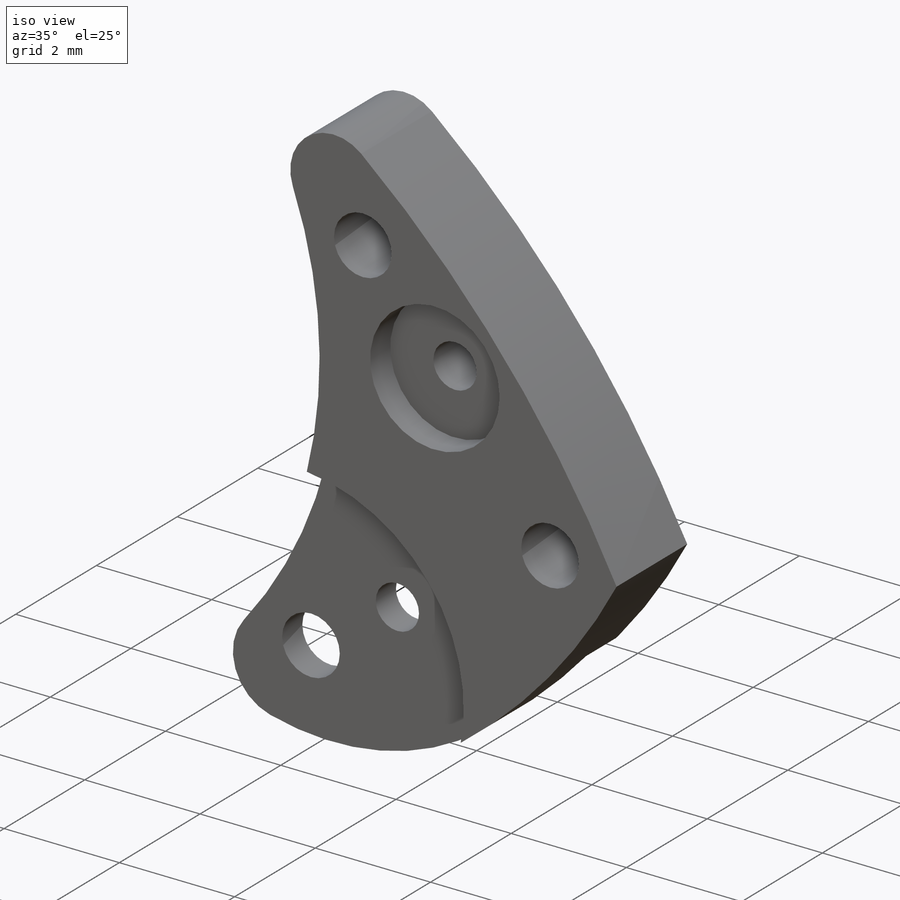
[diagram: iso view]
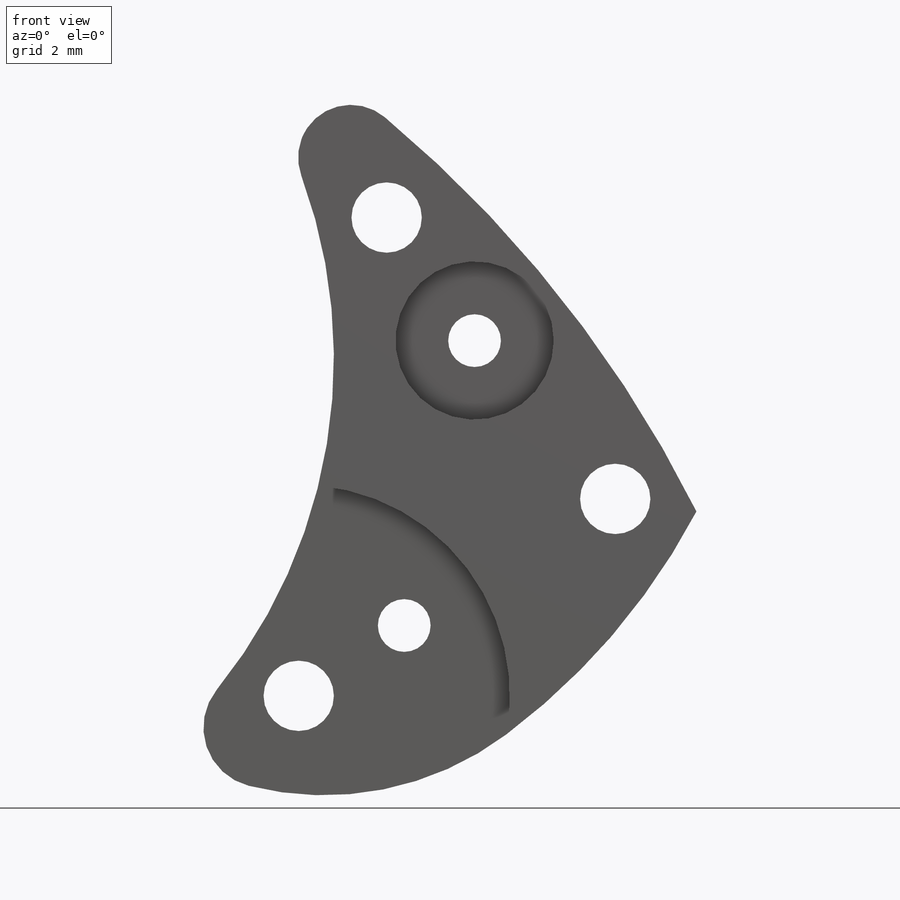
[diagram: front view]
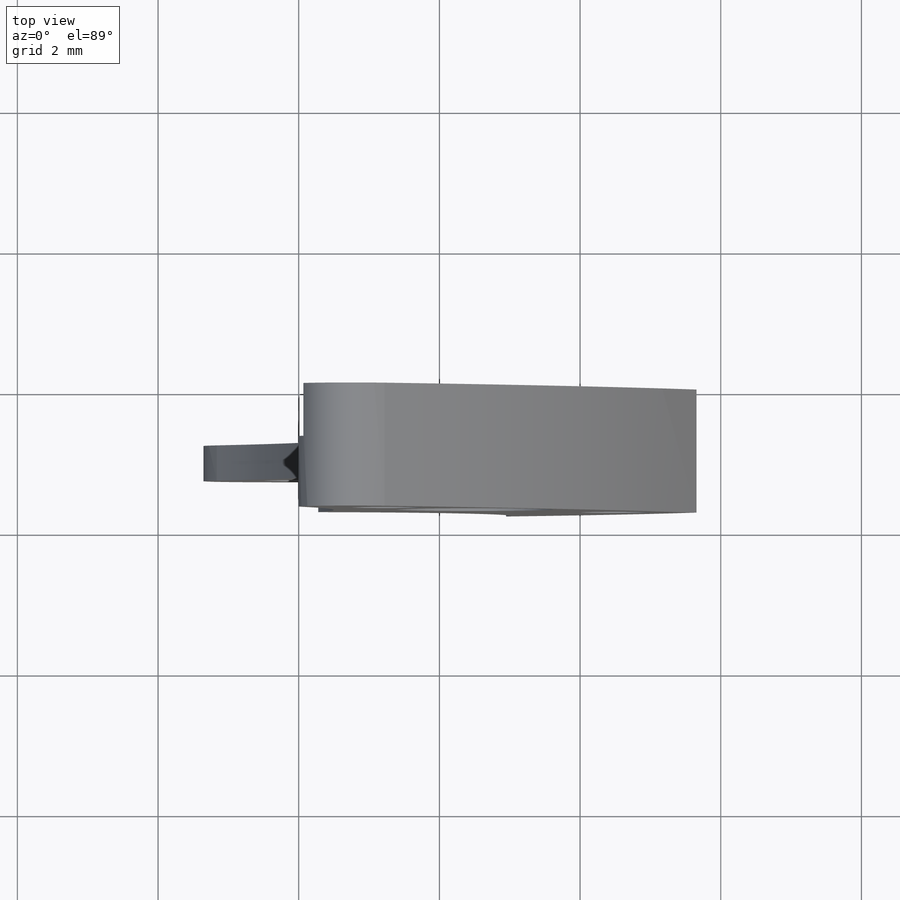
[diagram: top view]
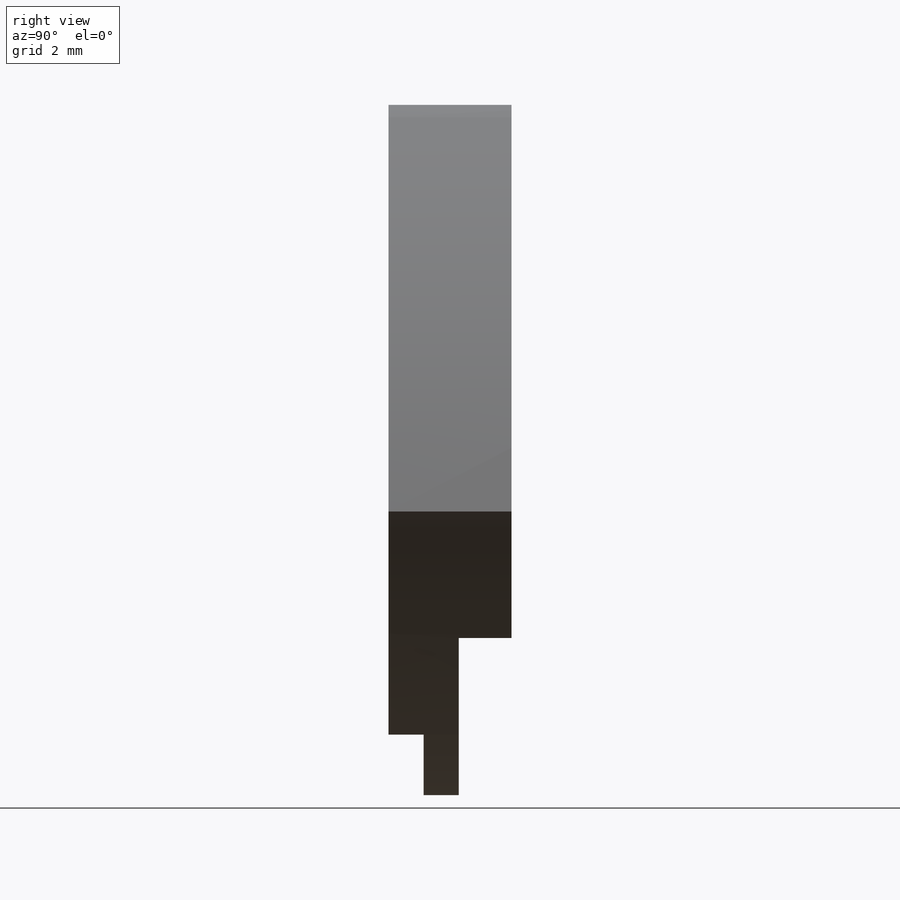
[diagram: right view]
SOLIDWORKS PART (.sldprt)
format: sldprt  version: not decoded by parser v0  size: 324,096 bytes
history: native  units: mm
features: sketch x9, cut_extrude x4, plane x3, hole x2, thread x2, material x1, extrude x1 (+8 scaffold rows collapsed)
feature tree (30):
  scaffold x8  (default folders/planes/origin — collapsed)
  material  "Material <sin especificar>"
  plane  "Alzado"
  plane  "Planta"
  plane  "Vista lateral"
  sketch  "Croquis1"  dims[c1.D3=~0.855387mm c1.D4=9.5mm c1.D5=7.5mm c1.D9=0.75mm c1.D10=17.5mm c1.D11=1.0mm c1.D14=6.0mm c1.D15=1.0mm c1.D16=1.0mm c1.D1=9.5mm c1.D2=4.75mm c1.D6=3.0mm c1.D7=10.0mm c2.D3=10.0mm c2.D7=7.25mm c2.D8=12.25mm c2.D12=10.0mm c2.D13=5.2mm c2.D17=14.5mm c2.D18=8.0mm c2.D19=12.0mm c2.D20=11.25mm]
  extrude  "Saliente-Extruir1"  Depth=1.75mm
  sketch  "Croquis3"  dims[D1=9.0mm]
  cut_extrude  "Cortar-Extruir2"  Depth=0.75mm
  sketch  "Croquis4"  dims[D1=0.25mm]
  cut_extrude  "Cortar-Extruir3"  [1 undecoded]
  sketch  "Croquis5"  dims[D1=2.25mm D2=10.25mm D3=12.5mm]
  cut_extrude  "Cortar-Extruir4"  Depth=0.5mm
  hole  "Taladro roscado M1x0.251"  Depth=1.25mm  [1 undecoded]
  sketch  "Croquis7"
  sketch  "Croquis6"  dims[hole-wizard template sketch: 61 standard entries collapsed; hole parameters above]
  thread  "Rosca de taladro1"  Diameter=1mm  [1 undecoded]
  sketch  "Croquis8"  dims[D1=6.0mm]
  cut_extrude  "Cortar-Extruir5"  Depth=0.5mm
  hole  "Taladro roscado M1x0.252"  Depth=2mm  [1 undecoded]
  sketch  "Croquis12"  dims[c1.D1=1.0mm c1.D2=1.0mm c2.D1=1.5mm c2.D2=1.0mm]
  sketch  "Croquis11"  dims[hole-wizard template sketch: 46 standard entries collapsed; hole parameters kept: c15.Diámetro de perforador para roscar=0.75mm c15.Profundidad de perforador para roscar=2.0mm c15.D3=~14.816244mm c15.Ángulo de perforador=118.0deg]
  thread  "Rosca de taladro2"  Diameter=0.5mm  [1 undecoded]
decode coverage: 16 of 18 modeling features carry decoded parameters
note: ~ marks probable driven/reference dimensions
note: 5 parameter values undecoded
summary: no parameter record found for 3 features
note: suppression state not decoded; provenance and decode notes live in map.json
